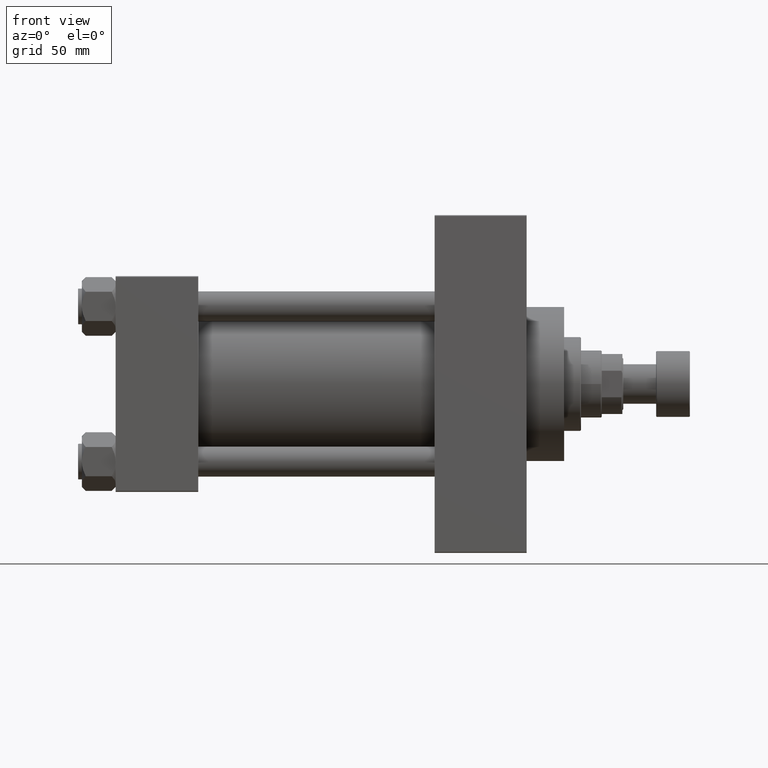
[diagram: clean part render]
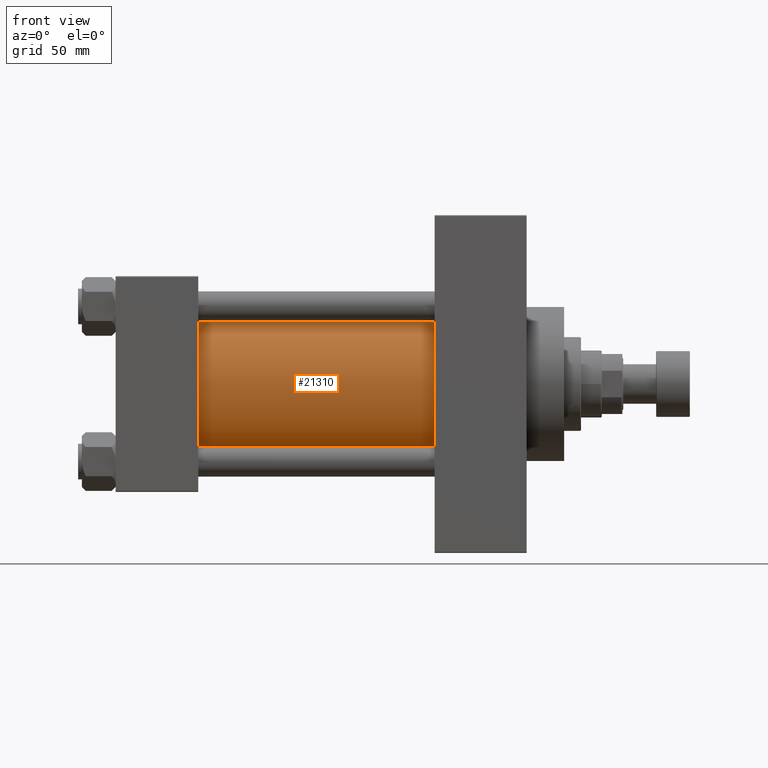
[diagram: same view with one face highlighted and labeled with its STEP entity id]
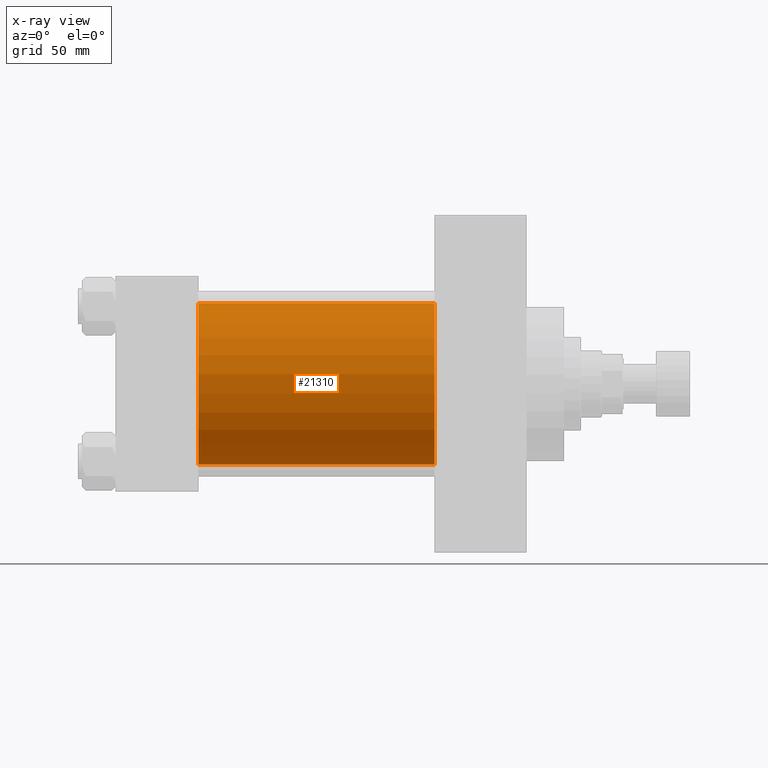
[diagram: x-ray of the same camera — body ghosted, the highlighted face saturated]
A machine part, front view. The second image highlights one B-rep face of the part: STEP entity #21310.
The next image is the same camera in x-ray: the body ghosted, the highlighted face saturated — about 2% of this face is hidden behind the body in this view.
In plain terms, the highlighted cylindrical surface (partial cylindrical patch) has radius 43 mm, axis along (-1, -0, -0).
Its self-contained STEP definition (entity closure, byte-faithful):
#612 = CYLINDRICAL_SURFACE ( 'NONE', #37326, 43.00000000000000000 ) ;
#1556 = CARTESIAN_POINT ( 'NONE',  ( 169.9999999999999716, 2.663896022368408223E-15, -43.00000000000000000 ) ) ;
#3382 = ORIENTED_EDGE ( 'NONE', *, *, #26862, .F. ) ;
#6253 = DIRECTION ( 'NONE',  ( 1.000000000000000000, -0.000000000000000000, 0.000000000000000000 ) ) ;
#6509 = CIRCLE ( 'NONE', #43834, 43.00000000000000000 ) ;
#10380 = DIRECTION ( 'NONE',  ( 0.000000000000000000, 0.000000000000000000, 1.000000000000000000 ) ) ;
#11165 = VECTOR ( 'NONE', #31020, 1000.000000000000000 ) ;
#12604 = VERTEX_POINT ( 'NONE', #35396 ) ;
#13594 = ORIENTED_EDGE ( 'NONE', *, *, #17804, .T. ) ;
#13794 = VERTEX_POINT ( 'NONE', #41392 ) ;
#14174 = DIRECTION ( 'NONE',  ( 0.000000000000000000, 0.000000000000000000, -1.000000000000000000 ) ) ;
#15448 = CARTESIAN_POINT ( 'NONE',  ( 169.9999999999999716, -2.602085213965210642E-15, 0.000000000000000000 ) ) ;
#17804 = EDGE_CURVE ( 'NONE', #12604, #46979, #44024, .T. ) ;
#18982 = EDGE_LOOP ( 'NONE', ( #3382, #43210, #13594, #32869 ) ) ;
#21310 = ADVANCED_FACE ( 'NONE', ( #33958 ), #612, .T. ) ;
#21737 = DIRECTION ( 'NONE',  ( 1.000000000000000000, 0.000000000000000000, 0.000000000000000000 ) ) ;
#23002 = LINE ( 'NONE', #1556, #11165 ) ;
#25028 = CARTESIAN_POINT ( 'NONE',  ( 43.99999999999998579, -2.602085213965210642E-15, 43.00000000000000000 ) ) ;
#25743 = CARTESIAN_POINT ( 'NONE',  ( 43.99999999999998579, -2.602085213965210642E-15, 0.000000000000000000 ) ) ;
#26862 = EDGE_CURVE ( 'NONE', #13794, #32049, #23002, .T. ) ;
#27040 = EDGE_CURVE ( 'NONE', #12604, #13794, #6509, .T. ) ;
#27093 = VECTOR ( 'NONE', #35991, 1000.000000000000000 ) ;
#27870 = DIRECTION ( 'NONE',  ( 0.000000000000000000, 0.000000000000000000, 1.000000000000000000 ) ) ;
#29390 = CIRCLE ( 'NONE', #48037, 43.00000000000000000 ) ;
#29527 = CARTESIAN_POINT ( 'NONE',  ( 169.9999999999999716, -2.602085213965210642E-15, 0.000000000000000000 ) ) ;
#30074 = CARTESIAN_POINT ( 'NONE',  ( 43.99999999999998579, 2.663896022368408223E-15, -43.00000000000000000 ) ) ;
#31020 = DIRECTION ( 'NONE',  ( -1.000000000000000000, -0.000000000000000000, -0.000000000000000000 ) ) ;
#32049 = VERTEX_POINT ( 'NONE', #30074 ) ;
#32869 = ORIENTED_EDGE ( 'NONE', *, *, #39641, .T. ) ;
#33958 = FACE_OUTER_BOUND ( 'NONE', #18982, .T. ) ;
#35396 = CARTESIAN_POINT ( 'NONE',  ( 169.9999999999999716, -2.602085213965210642E-15, 43.00000000000000000 ) ) ;
#35991 = DIRECTION ( 'NONE',  ( -1.000000000000000000, -0.000000000000000000, -0.000000000000000000 ) ) ;
#37326 = AXIS2_PLACEMENT_3D ( 'NONE', #15448, #45164, #27870 ) ;
#39641 = EDGE_CURVE ( 'NONE', #46979, #32049, #29390, .T. ) ;
#40366 = CARTESIAN_POINT ( 'NONE',  ( 169.9999999999999716, -2.602085213965210642E-15, 43.00000000000000000 ) ) ;
#41392 = CARTESIAN_POINT ( 'NONE',  ( 169.9999999999999716, 2.663896022368408223E-15, -43.00000000000000000 ) ) ;
#43210 = ORIENTED_EDGE ( 'NONE', *, *, #27040, .F. ) ;
#43834 = AXIS2_PLACEMENT_3D ( 'NONE', #29527, #21737, #14174 ) ;
#44024 = LINE ( 'NONE', #40366, #27093 ) ;
#45164 = DIRECTION ( 'NONE',  ( -1.000000000000000000, -0.000000000000000000, -0.000000000000000000 ) ) ;
#46979 = VERTEX_POINT ( 'NONE', #25028 ) ;
#48037 = AXIS2_PLACEMENT_3D ( 'NONE', #25743, #6253, #10380 ) ;